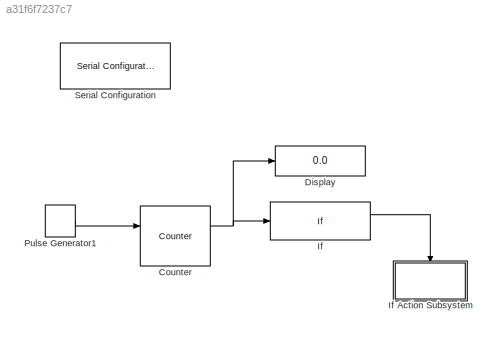
MODEL slx_a31f6f7237c7
KIND model
CONFIG AbsTol = auto
CONFIG FixedStep = 0.001
CONFIG MaxStep = auto
CONFIG MinStep = auto
CONFIG RelTol = 1e-3
CONFIG SampleTimeConstraint = Unconstrained
CONFIG Solver = ode1
CONFIG SolverMode = Auto
CONFIG SolverName = ode1
CONFIG StartTime = 0.0
CONFIG StopTime = inf
BLOCK [Reference] Counter  REF=dspswit3/Counter
  Ports = [2, 2]
  SourceBlock = dspswit3/Counter
  SourceType = Counter
BLOCK [Display] Display
  Decimation = 1
  Ports = [1]
BLOCK [If] If
  IfExpression = u1 > 5
  Ports = [1, 2]
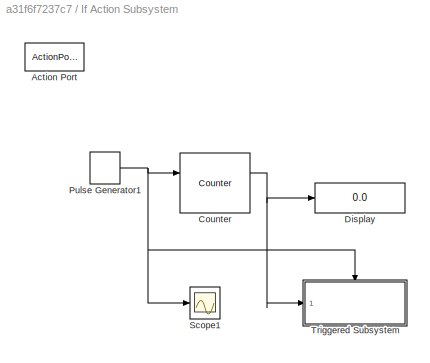
BLOCK [SubSystem] If Action Subsystem
  Ports = [0, 0, 0, 0, 0, 0, 0, 1]
  RequestExecContextInheritance = off
  TreatAsAtomicUnit = on
  Variant = off
BLOCK [ActionPort] If Action Subsystem/Action Port
  ActionType = then
BLOCK [Reference] If Action Subsystem/Counter  REF=dspswit3/Counter
  Ports = [2, 2]
  SourceBlock = dspswit3/Counter
  SourceType = Counter
BLOCK [Display] If Action Subsystem/Display
  Decimation = 1
  Ports = [1]
BLOCK [DiscretePulseGenerator] If Action Subsystem/Pulse Generator1
  Period = 5
  Ports = [0, 1]
  PulseType = Time based
  PulseWidth = 50
BLOCK [Scope] If Action Subsystem/Scope1
  Ports = [1]
  ScopeSpecificationString = Simulink.scopes.TimeScopeBlockCfg('CurrentConfiguration', extmgr.ConfigurationSet(extmgr.Configuration('Core','General UI',true),extmgr.Configuration('Core','Source UI',true),extmgr.Configuration('Sources','WiredSimulink',true,'DataLoggingDecimateData',true),extmgr.Configuration('Visuals','Time Domain',true,'SerializedDisplays',{struct('MinYLimReal','-0.125','MaxYLimReal','1.125','YLabelReal','','...<+1631ch>
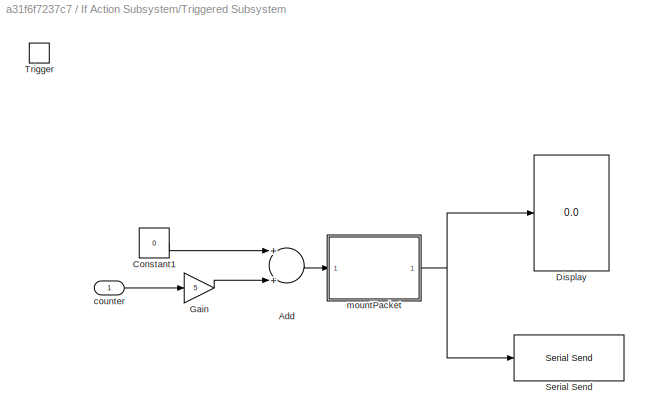
BLOCK [SubSystem] If Action Subsystem/Triggered Subsystem
  Ports = [1, 0, 0, 1]
  RequestExecContextInheritance = off
  TreatAsAtomicUnit = on
  Variant = off
BLOCK [Sum] If Action Subsystem/Triggered Subsystem/Add
  InputSameDT = off
  OutDataTypeStr = uint16
  Ports = [2, 1]
  SaturateOnIntegerOverflow = off
BLOCK [Constant] If Action Subsystem/Triggered Subsystem/Constant1
  OutDataTypeStr = uint8
  Value = 0
BLOCK [Display] If Action Subsystem/Triggered Subsystem/Display
  Decimation = 1
  Ports = [1]
BLOCK [Gain] If Action Subsystem/Triggered Subsystem/Gain
  Gain = 5
  OutDataTypeStr = Inherit: Inherit via internal rule
  ParamDataTypeStr = Inherit: Inherit via internal rule
  SaturateOnIntegerOverflow = off
BLOCK [Reference] If Action Subsystem/Triggered Subsystem/Serial Send  REF=instrumentlib/Serial Send
  Ports = [1]
  SourceBlock = instrumentlib/Serial Send
  SourceType = Serial Send
BLOCK [TriggerPort] If Action Subsystem/Triggered Subsystem/Trigger
  Ports = []
  StatesWhenEnabling = held
  TriggerType = falling
  VariantControl = Variant
BLOCK [Inport] If Action Subsystem/Triggered Subsystem/counter
  IconDisplay = Port number
  OutDataTypeStr = uint8
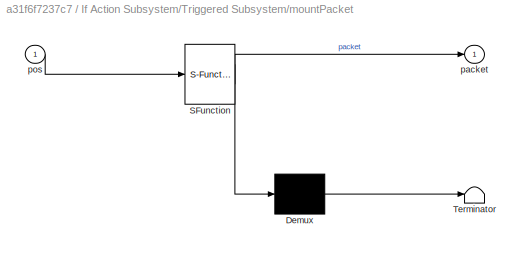
BLOCK [SubSystem] If Action Subsystem/Triggered Subsystem/mountPacket
  ErrorFcn = Stateflow.Translate.translate
  PermitHierarchicalResolution = ExplicitOnly
  Ports = [1, 1]
  RequestExecContextInheritance = off
  SFBlockType = MATLAB Function
  TreatAsAtomicUnit = on
  Variant = off
BLOCK [Demux] If Action Subsystem/Triggered Subsystem/mountPacket/ Demux 
  Outputs = 1
  Ports = [1, 1]
BLOCK [S-Function] If Action Subsystem/Triggered Subsystem/mountPacket/ SFunction 
  EnableBusSupport = on
  FunctionName = sf_sfun
  PortCounts = [1 2]
  Ports = [1, 2]
  SFunctionDeploymentMode = off
  Tag = Stateflow S-Function example 2
BLOCK [Terminator] If Action Subsystem/Triggered Subsystem/mountPacket/ Terminator 
BLOCK [Outport] If Action Subsystem/Triggered Subsystem/mountPacket/packet
  IconDisplay = Port number
BLOCK [Inport] If Action Subsystem/Triggered Subsystem/mountPacket/pos
  IconDisplay = Port number
BLOCK [DiscretePulseGenerator] Pulse Generator1
  Period = 100
  Ports = [0, 1]
  PulseType = Time based
  PulseWidth = 50
BLOCK [Reference] Serial Configuration  REF=instrumentlib/Serial Configuration
  Ports = []
  Priority = -200000
  SourceBlock = instrumentlib/Serial Configuration
  SourceType = Serial Configuration
NET Counter:1 -> Display:1, If:1
NET If Action Subsystem/Counter:1 -> If Action Subsystem/Display:1, If Action Subsystem/Triggered Subsystem:1
NET If Action Subsystem/Pulse Generator1:1 -> If Action Subsystem/Counter:1, If Action Subsystem/Scope1:1, If Action Subsystem/Triggered Subsystem:trigger
LINE If Action Subsystem/Triggered Subsystem/Add:1 -> If Action Subsystem/Triggered Subsystem/mountPacket:1
LINE If Action Subsystem/Triggered Subsystem/Constant1:1 -> If Action Subsystem/Triggered Subsystem/Add:1
LINE If Action Subsystem/Triggered Subsystem/Gain:1 -> If Action Subsystem/Triggered Subsystem/Add:2
LINE If Action Subsystem/Triggered Subsystem/counter:1 -> If Action Subsystem/Triggered Subsystem/Gain:1
NET If Action Subsystem/Triggered Subsystem/mountPacket:1 -> If Action Subsystem/Triggered Subsystem/Display:1, If Action Subsystem/Triggered Subsystem/Serial Send:1
LINE If:1 -> If Action Subsystem:ifaction
LINE Pulse Generator1:1 -> Counter:1
note: NET lines group one-source signal fan-out (src -> all destinations, sorted); 1:1 wires keep LINE
CHART If Action
Subsystem/Triggered
Subsystem/mountPacket states=1 transitions=1
  STATE_LABEL 'eML_blk_kernel()'
  STATE_LABEL "SCRIPT:\nfunction packet = sendSerialData(pos)\n    posMSB = uint8(bitshift(pos,-8)); %equivalent to pos>>8\n    posLSB = uint8(bitand(pos,255)); %equivalent to pos&0XFF\n    packet = uint8(zeros(1,6));\n    packet(1) = uint8(36); %header: '$'\n    packet(2) = uint8(0); %action\n    packet(3) = uint8(6); %servo\n    packet(4) = uint8(posMSB); %posMSB\n    packet(5) = uint8(posLSB); %posLSB\n    packet(6) = ...<+60ch>"
